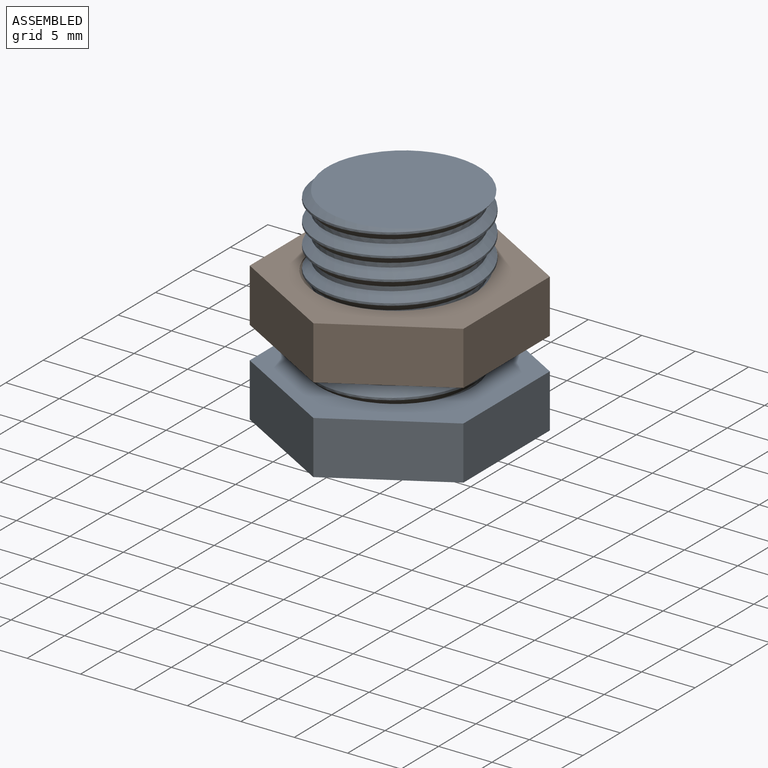
[diagram: assembled view]
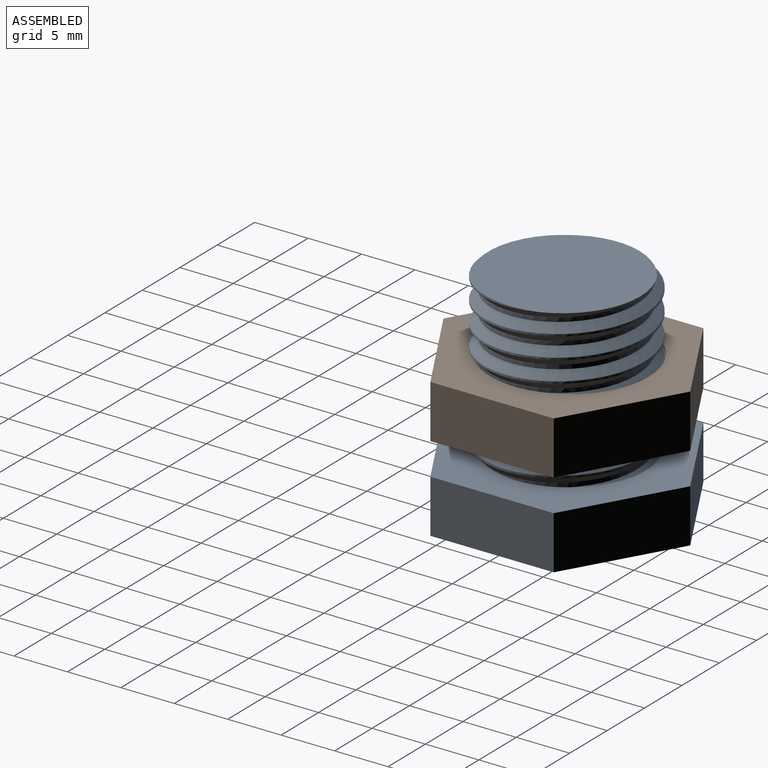
[diagram: assembled view, second angle]
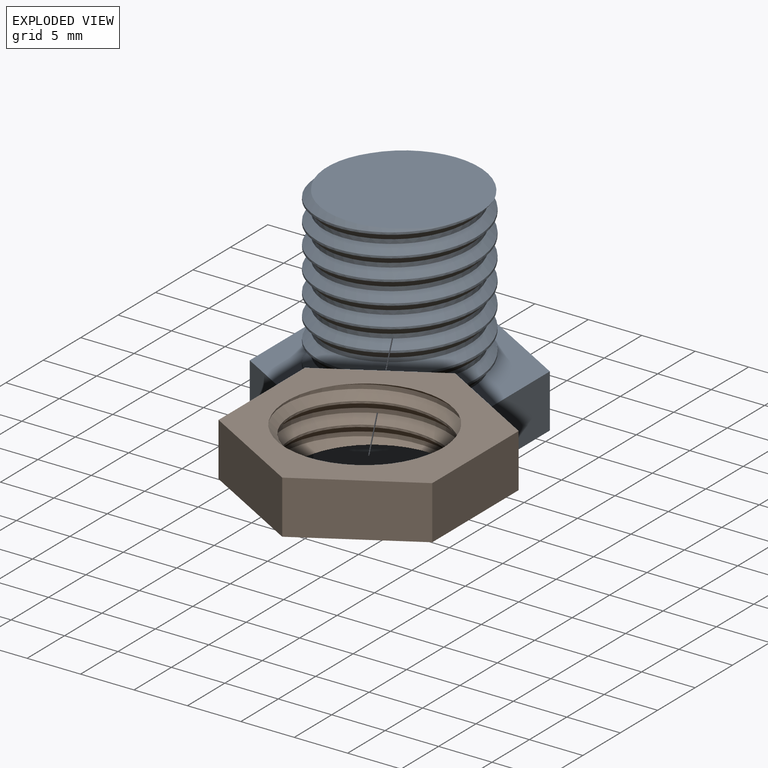
[diagram: exploded view]
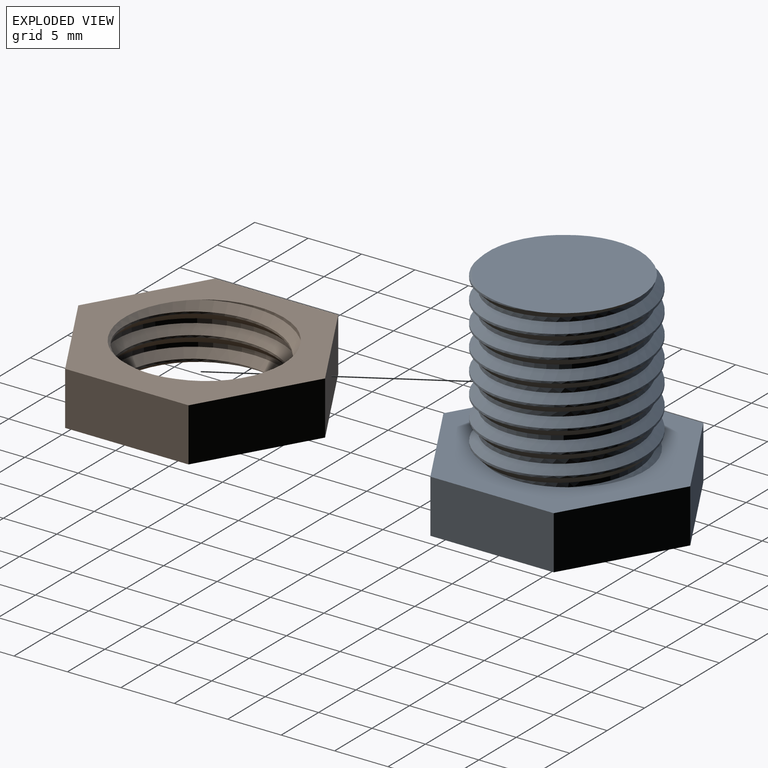
[diagram: exploded view, second angle]
ASSEMBLY  parts=2 mates=2
PART A: 15 faces, bbox 20.4x23.5x21.3 mm
  f0: cylinder r=7.5mm len=15mm, axis (0,0,-1), area 80.8mm2, adj f1,f3,f4,f5,f6,f7
  f1: plane 14.75x14.67mm, normal (0,0,1), area 159.2mm2, adj f0,f2,f5,f6
  f2: cylinder r=6.8mm len=15mm, axis (0,0,-1), area 170.9mm2, adj f1,f3,f4,f5,f6,f7
  f3: bspline ~17.32x15mm, area 34.5mm2, adj f0,f2,f6,f7
  f4: bspline ~15.16x15mm, area 10mm2, adj f0,f2,f5,f7
  f5: bspline ~17.32x15.7mm, area 324.2mm2, adj f0,f1,f2,f4
  f6: bspline ~17.32x15.03mm, area 299.8mm2, adj f0,f1,f2,f3
  f7: plane 23.54x20.45mm, normal (0,0,1), area 187.2mm2, adj f0,f2,f3,f4,f8,f9,f10,f11
  f8: plane 11.55x5mm, normal (1,0,0), area 57.7mm2, adj f7,f9,f13,f14
  f9: plane 10x5.77mm, normal (0.5,-0.87,0), area 57.7mm2, adj f7,f8,f10,f14
  f10: plane 10x5.77mm, normal (-0.5,-0.87,0), area 57.7mm2, adj f7,f9,f11,f14
  f11: plane 11.55x5mm, normal (-1,0,0), area 57.7mm2, adj f7,f10,f12,f14
  f12: plane 10x5.77mm, normal (-0.5,0.87,0), area 57.7mm2, adj f7,f11,f13,f14
  f13: plane 10x5.77mm, normal (0.5,0.87,0), area 57.7mm2, adj f7,f8,f12,f14
  f14: plane 23.09x20mm, normal (0,0,-1), area 346.4mm2, adj f8,f9,f10,f11,f12,f13
PART B: 14 faces, bbox 20x23.1x6.8 mm
  f0: cylinder r=7mm len=14mm, axis (0,0,-1), area 22mm2, adj f1,f8,f9,f11,f12,f13
  f1: plane 23.09x20mm, normal (0,0,-1), area 174.9mm2, adj f0,f2,f3,f4,f5,f6,f7,f9
  f2: plane 11.55x5mm, normal (1,0,0), area 57.7mm2, adj f1,f3,f7,f8
  f3: plane 10x5.77mm, normal (0.5,0.87,0), area 57.7mm2, adj f1,f2,f4,f8
  f4: plane 10x5.77mm, normal (-0.5,0.87,0), area 57.7mm2, adj f1,f3,f5,f8
  f5: plane 11.55x5mm, normal (-1,0,0), area 57.7mm2, adj f1,f4,f6,f8
  f6: plane 10x5.77mm, normal (-0.5,-0.87,0), area 57.7mm2, adj f1,f5,f7,f8
  f7: plane 10x5.77mm, normal (0.5,-0.87,0), area 57.7mm2, adj f1,f2,f6,f8
  f8: plane 23.09x20mm, normal (0,0,1), area 174.9mm2, adj f0,f2,f3,f4,f5,f6,f7,f10
  f9: bspline ~17.78x15.4mm, area 79mm2, adj f0,f1,f10,f12
  f10: cylinder r=7.7mm len=15.4mm, axis (0,0,-1), area 48.3mm2, adj f1,f8,f9,f11,f12,f13
  f11: bspline ~17.78x15.4mm, area 104mm2, adj f0,f1,f10,f13
  f12: bspline ~17.78x15.4mm, area 35.3mm2, adj f0,f8,f9,f10
  f13: bspline ~15.4x8.89mm, area 10.4mm2, adj f0,f8,f10,f11
PLACE A t=(-0.2,0.09,5.86)mm fixed
PLACE B t=(-0.2,0.09,8.87)mm
MATE planar A.f9 <-> B.f7  axis (0.5,-0.87,0) through (4.8,-8.57,3.36)mm
MATE planar B.f6 <-> A.f10  axis (-0.5,-0.87,0) through (-5.2,-8.57,11.37)mm
